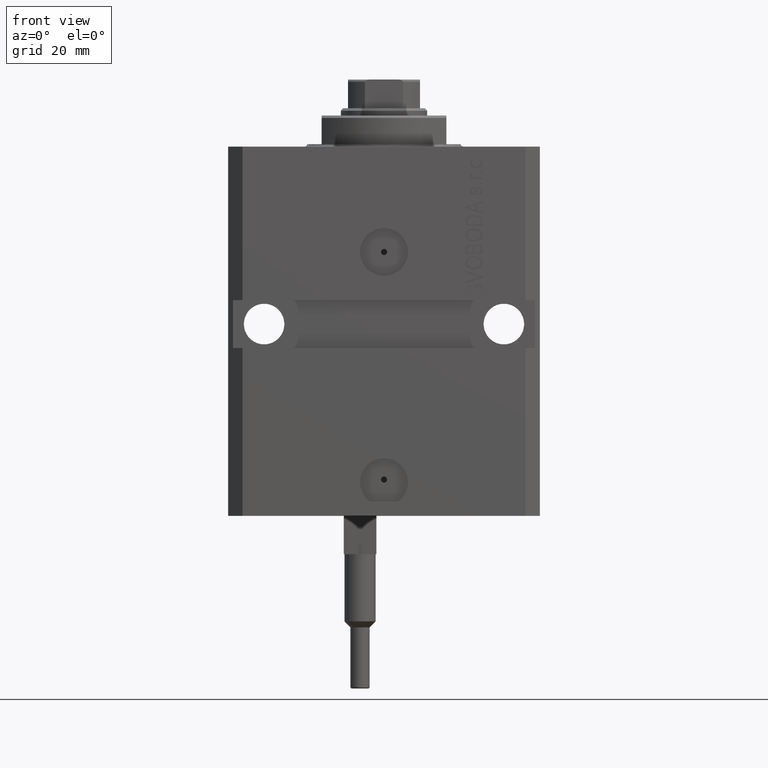
[diagram: clean part render]
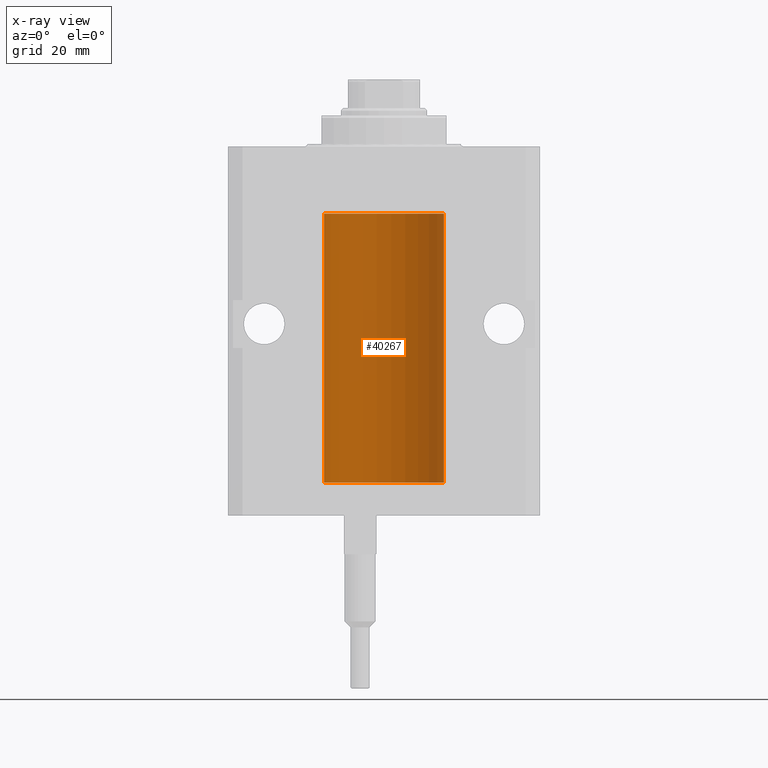
[diagram: x-ray — body ghosted, one internal face saturated and labeled with its STEP entity id]
A machine part, front view, then the same camera in x-ray: the body is ghosted and one INTERNAL B-rep face — a face not visible from any outside direction — is saturated and labeled: STEP entity #40267.
In plain terms, the highlighted cylindrical surface (partial cylindrical patch) has radius 12.5 mm, axis along (0, 0, 1).
Its self-contained STEP definition (entity closure, byte-faithful):
#451 = CARTESIAN_POINT ( 'NONE',  ( -12.49625855304193678, 0.3150454781038042329, -21.45402800297484802 ) ) ;
#645 = EDGE_CURVE ( 'NONE', #2744, #26619, #7712, .T. ) ;
#988 = CARTESIAN_POINT ( 'NONE',  ( 12.50000000000000000, 0.000000000000000000, -70.09999999999999432 ) ) ;
#1165 = CARTESIAN_POINT ( 'NONE',  ( -12.48436813453758454, 0.6249418250771192618, -21.83668996798922635 ) ) ;
#1202 = CARTESIAN_POINT ( 'NONE',  ( -12.48520330846398174, 0.6088355886774118320, -65.16325431852561678 ) ) ;
#1348 = DIRECTION ( 'NONE',  ( 0.000000000000000000, 0.000000000000000000, 1.000000000000000000 ) ) ;
#1866 = B_SPLINE_CURVE_WITH_KNOTS ( 'NONE', 3,
 ( #19581, #23460, #33636, #451, #34351, #41396, #1165, #15221, #30237, #37507, #26835, #30004, #29772, #26357 ),
 .UNSPECIFIED., .F., .F.,
 ( 4, 2, 2, 2, 2, 2, 4 ),
 ( 2.030551168097110502E-20, 0.0002442924852390969078, 0.0004885849704781938157, 0.0009771699409563880650, 0.001221462426195485135, 0.001465754911434582423, 0.001954339881912776130 ),
 .UNSPECIFIED. ) ;
#1914 = CARTESIAN_POINT ( 'NONE',  ( -12.49011732893843885, 0.5003763274120245352, -65.38348111289289477 ) ) ;
#2408 = DIRECTION ( 'NONE',  ( -0.000000000000000000, -0.000000000000000000, 1.000000000000000000 ) ) ;
#2409 = ORIENTED_EDGE ( 'NONE', *, *, #40344, .T. ) ;
#2744 = VERTEX_POINT ( 'NONE', #22638 ) ;
#3444 = DIRECTION ( 'NONE',  ( -0.000000000000000000, -0.000000000000000000, 1.000000000000000000 ) ) ;
#3945 = AXIS2_PLACEMENT_3D ( 'NONE', #37605, #19197, #33960 ) ;
#4080 = ORIENTED_EDGE ( 'NONE', *, *, #40119, .F. ) ;
#4405 = EDGE_CURVE ( 'NONE', #9768, #6895, #24850, .T. ) ;
#5326 = DIRECTION ( 'NONE',  ( -0.000000000000000000, -0.000000000000000000, 1.000000000000000000 ) ) ;
#5536 = ORIENTED_EDGE ( 'NONE', *, *, #18965, .T. ) ;
#5544 = CARTESIAN_POINT ( 'NONE',  ( -12.48436376893640265, 0.6250290278979918623, -65.08132082824472775 ) ) ;
#6895 = VERTEX_POINT ( 'NONE', #38270 ) ;
#7712 = CIRCLE ( 'NONE', #38677, 12.50000000000000000 ) ;
#7797 = CARTESIAN_POINT ( 'NONE',  ( -12.50000000000000000, -1.053276923642966949E-14, -64.37500000000000000 ) ) ;
#8000 = CARTESIAN_POINT ( 'NONE',  ( -12.50000000000000000, 1.530808498934191521E-15, -70.09999999999999432 ) ) ;
#8238 = LINE ( 'NONE', #8000, #14072 ) ;
#8687 = ORIENTED_EDGE ( 'NONE', *, *, #14964, .F. ) ;
#8699 = CARTESIAN_POINT ( 'NONE',  ( -12.48810268015257741, 0.5573155909661293705, -64.67347410093867666 ) ) ;
#9191 = CARTESIAN_POINT ( 'NONE',  ( -12.50000000000000000, 1.530808498934191521E-15, -70.09999999999999432 ) ) ;
#9768 = VERTEX_POINT ( 'NONE', #36672 ) ;
#10703 = CARTESIAN_POINT ( 'NONE',  ( -12.50000000000000000, 1.530808498934191521E-15, -70.09999999999999432 ) ) ;
#11757 = AXIS2_PLACEMENT_3D ( 'NONE', #42187, #2408, #43145 ) ;
#12334 = CARTESIAN_POINT ( 'NONE',  ( -12.49631005746706514, 0.3253680783018499389, -65.55856740465391397 ) ) ;
#12512 = EDGE_CURVE ( 'NONE', #23852, #6895, #29365, .T. ) ;
#12544 = VERTEX_POINT ( 'NONE', #36388 ) ;
#12815 = CARTESIAN_POINT ( 'NONE',  ( -12.49625855304193500, 0.3150454781038046770, -64.45402800297485157 ) ) ;
#14072 = VECTOR ( 'NONE', #15755, 1000.000000000000000 ) ;
#14477 = ORIENTED_EDGE ( 'NONE', *, *, #645, .F. ) ;
#14964 = EDGE_CURVE ( 'NONE', #26619, #40943, #28931, .T. ) ;
#15211 = ORIENTED_EDGE ( 'NONE', *, *, #12512, .F. ) ;
#15221 = CARTESIAN_POINT ( 'NONE',  ( -12.48436376893640443, 0.6250290278979917513, -22.08132082824473486 ) ) ;
#15487 = ORIENTED_EDGE ( 'NONE', *, *, #17216, .T. ) ;
#15755 = DIRECTION ( 'NONE',  ( -0.000000000000000000, -0.000000000000000000, 1.000000000000000000 ) ) ;
#17216 = EDGE_CURVE ( 'NONE', #30925, #40943, #24245, .T. ) ;
#17319 = CARTESIAN_POINT ( 'NONE',  ( -12.50000000000017941, 3.883381774819353300E-13, -65.62500000000359535 ) ) ;
#18965 = EDGE_CURVE ( 'NONE', #2744, #9768, #37807, .T. ) ;
#19197 = DIRECTION ( 'NONE',  ( 0.000000000000000000, 0.000000000000000000, 1.000000000000000000 ) ) ;
#19581 = CARTESIAN_POINT ( 'NONE',  ( -12.50000000000000000, -2.089494013101375120E-17, -21.37499999999999645 ) ) ;
#20821 = CYLINDRICAL_SURFACE ( 'NONE', #11757, 12.50000000000000000 ) ;
#21520 = VECTOR ( 'NONE', #5326, 1000.000000000000000 ) ;
#22638 = CARTESIAN_POINT ( 'NONE',  ( 12.50000000000000000, 0.000000000000000000, -70.09999999999999432 ) ) ;
#23460 = CARTESIAN_POINT ( 'NONE',  ( -12.50000000000000000, 0.08260426088729219685, -21.37500000000000000 ) ) ;
#23497 = CARTESIAN_POINT ( 'NONE',  ( -12.49999999999999822, 0.1631761135151225950, -65.62499999999985789 ) ) ;
#23755 = FACE_OUTER_BOUND ( 'NONE', #46762, .T. ) ;
#23852 = VERTEX_POINT ( 'NONE', #33290 ) ;
#23965 = CARTESIAN_POINT ( 'NONE',  ( -12.49999999999999645, 0.08260426088728485550, -64.37499999999998579 ) ) ;
#24245 = B_SPLINE_CURVE_WITH_KNOTS ( 'NONE', 3,
 ( #46055, #23965, #34387, #12815, #31475, #8699, #38738, #5544, #1202, #45570, #1914, #12334, #23497, #38268 ),
 .UNSPECIFIED., .F., .F.,
 ( 4, 2, 2, 2, 2, 2, 4 ),
 ( 3.492495172846855184E-18, 0.0002442924852390798859, 0.0004885849704781563023, 0.0009771699409563386254, 0.001221462426195450658, 0.001465754911434562473, 0.001954339881912786538 ),
 .UNSPECIFIED. ) ;
#24850 = CIRCLE ( 'NONE', #3945, 12.50000000000000000 ) ;
#25295 = CARTESIAN_POINT ( 'NONE',  ( -12.50000000000000000, 1.530808498934191521E-15, -70.09999999999999432 ) ) ;
#26357 = CARTESIAN_POINT ( 'NONE',  ( -12.50000000000017941, 3.883381646606358354E-13, -22.62500000000358824 ) ) ;
#26619 = VERTEX_POINT ( 'NONE', #9191 ) ;
#26835 = CARTESIAN_POINT ( 'NONE',  ( -12.49011732893843529, 0.5003763274120274218, -22.38348111289287701 ) ) ;
#28931 = LINE ( 'NONE', #25295, #36211 ) ;
#29365 = LINE ( 'NONE', #10703, #41558 ) ;
#29772 = CARTESIAN_POINT ( 'NONE',  ( -12.49999999999999289, 0.1631761135151241215, -22.62499999999984013 ) ) ;
#30004 = CARTESIAN_POINT ( 'NONE',  ( -12.49631005746706336, 0.3253680783018528255, -22.55856740465392463 ) ) ;
#30237 = CARTESIAN_POINT ( 'NONE',  ( -12.48520330846397819, 0.6088355886774127201, -22.16325431852561323 ) ) ;
#30925 = VERTEX_POINT ( 'NONE', #7797 ) ;
#31475 = CARTESIAN_POINT ( 'NONE',  ( -12.49422197749724361, 0.3843754434364307082, -64.50047099568097053 ) ) ;
#33290 = CARTESIAN_POINT ( 'NONE',  ( -12.50000000000000000, -2.089494013101375120E-17, -21.37499999999999645 ) ) ;
#33636 = CARTESIAN_POINT ( 'NONE',  ( -12.49915784441386890, 0.1636601911727947889, -21.39126818989430490 ) ) ;
#33960 = DIRECTION ( 'NONE',  ( 1.000000000000000000, 0.000000000000000000, 0.000000000000000000 ) ) ;
#34351 = CARTESIAN_POINT ( 'NONE',  ( -12.49422197749724006, 0.3843754434364375916, -21.50047099568095277 ) ) ;
#34387 = CARTESIAN_POINT ( 'NONE',  ( -12.49915784441386890, 0.1636601911727943726, -64.39126818989430490 ) ) ;
#36211 = VECTOR ( 'NONE', #40077, 1000.000000000000000 ) ;
#36388 = CARTESIAN_POINT ( 'NONE',  ( -12.50000000000017941, 3.883381646606358354E-13, -22.62500000000358824 ) ) ;
#36672 = CARTESIAN_POINT ( 'NONE',  ( 12.50000000000000000, 0.000000000000000000, -13.99999999999999822 ) ) ;
#37507 = CARTESIAN_POINT ( 'NONE',  ( -12.48809959379011403, 0.5462151254764975317, -22.31461370481611795 ) ) ;
#37605 = CARTESIAN_POINT ( 'NONE',  ( 0.000000000000000000, 0.000000000000000000, -13.99999999999999822 ) ) ;
#37807 = LINE ( 'NONE', #988, #21520 ) ;
#38268 = CARTESIAN_POINT ( 'NONE',  ( -12.50000000000017941, 3.883381774819353300E-13, -65.62500000000359535 ) ) ;
#38270 = CARTESIAN_POINT ( 'NONE',  ( -12.50000000000000000, 1.530808498934191521E-15, -13.99999999999999822 ) ) ;
#38646 = CARTESIAN_POINT ( 'NONE',  ( 0.000000000000000000, 0.000000000000000000, -70.09999999999999432 ) ) ;
#38677 = AXIS2_PLACEMENT_3D ( 'NONE', #38646, #1348, #45241 ) ;
#38738 = CARTESIAN_POINT ( 'NONE',  ( -12.48436813453758809, 0.6249418250771181516, -64.83668996798922990 ) ) ;
#39932 = ORIENTED_EDGE ( 'NONE', *, *, #4405, .T. ) ;
#40077 = DIRECTION ( 'NONE',  ( -0.000000000000000000, -0.000000000000000000, 1.000000000000000000 ) ) ;
#40119 = EDGE_CURVE ( 'NONE', #30925, #12544, #8238, .T. ) ;
#40267 = ADVANCED_FACE ( 'NONE', ( #23755 ), #20821, .F. ) ;
#40344 = EDGE_CURVE ( 'NONE', #23852, #12544, #1866, .T. ) ;
#40943 = VERTEX_POINT ( 'NONE', #17319 ) ;
#41396 = CARTESIAN_POINT ( 'NONE',  ( -12.48810268015257563, 0.5573155909661349217, -21.67347410093867666 ) ) ;
#41558 = VECTOR ( 'NONE', #3444, 1000.000000000000000 ) ;
#42187 = CARTESIAN_POINT ( 'NONE',  ( 0.000000000000000000, 0.000000000000000000, -70.09999999999999432 ) ) ;
#43145 = DIRECTION ( 'NONE',  ( 1.000000000000000000, 0.000000000000000000, 0.000000000000000000 ) ) ;
#45241 = DIRECTION ( 'NONE',  ( 1.000000000000000000, 0.000000000000000000, 0.000000000000000000 ) ) ;
#45570 = CARTESIAN_POINT ( 'NONE',  ( -12.48809959379011580, 0.5462151254764966435, -65.31461370481613926 ) ) ;
#46055 = CARTESIAN_POINT ( 'NONE',  ( -12.50000000000000000, -1.053276923642966949E-14, -64.37500000000000000 ) ) ;
#46762 = EDGE_LOOP ( 'NONE', ( #8687, #14477, #5536, #39932, #15211, #2409, #4080, #15487 ) ) ;